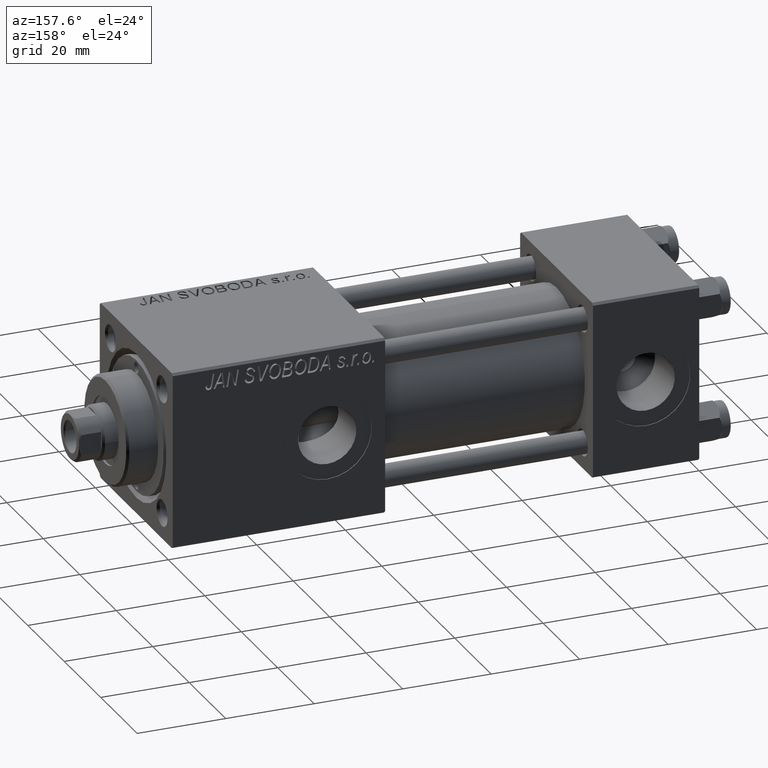
[diagram: clean part render]
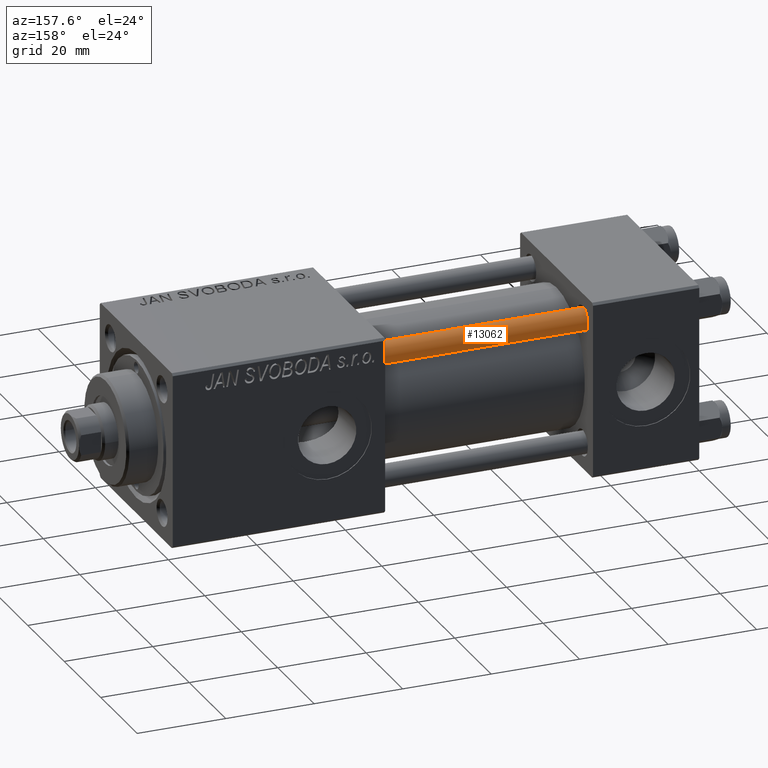
[diagram: same view with one face highlighted and labeled with its STEP entity id]
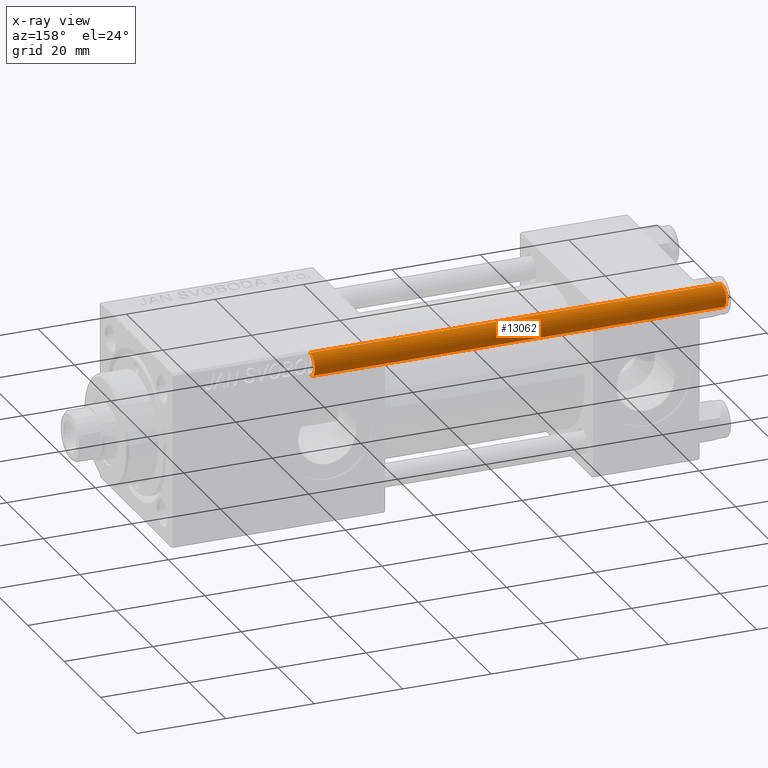
[diagram: x-ray of the same camera — body ghosted, the highlighted face saturated]
A machine part, auxiliary view. The second image highlights one B-rep face of the part: STEP entity #13062.
The next image is the same camera in x-ray: the body ghosted, the highlighted face saturated — about 0% of this face is hidden behind the body in this view.
In plain terms, the highlighted cylindrical surface (edge-blend (fillet) strip) has radius 2.5 mm, axis along (-1, 0, 0).
Its self-contained STEP definition (entity closure, byte-faithful):
#895 = LINE ( 'NONE', #19992, #18024 ) ;
#1202 = ORIENTED_EDGE ( 'NONE', *, *, #28538, .T. ) ;
#2169 = EDGE_CURVE ( 'NONE', #17967, #31237, #32890, .T. ) ;
#4234 = DIRECTION ( 'NONE',  ( -0.000000000000000000, -0.000000000000000000, -1.000000000000000000 ) ) ;
#4851 = DIRECTION ( 'NONE',  ( 1.000000000000000000, 0.000000000000000000, 0.000000000000000000 ) ) ;
#7232 = CARTESIAN_POINT ( 'NONE',  ( 0.000000000000000000, 0.000000000000000000, 94.00000000000000000 ) ) ;
#7521 = ORIENTED_EDGE ( 'NONE', *, *, #23137, .F. ) ;
#7570 = VECTOR ( 'NONE', #9035, 1000.000000000000000 ) ;
#8699 = DIRECTION ( 'NONE',  ( 1.000000000000000000, 0.000000000000000000, 0.000000000000000000 ) ) ;
#9035 = DIRECTION ( 'NONE',  ( -0.000000000000000000, -0.000000000000000000, -1.000000000000000000 ) ) ;
#9324 = ORIENTED_EDGE ( 'NONE', *, *, #24865, .T. ) ;
#12285 = ORIENTED_EDGE ( 'NONE', *, *, #2169, .T. ) ;
#13062 = ADVANCED_FACE ( 'NONE', ( #15116 ), #42076, .T. ) ;
#15116 = FACE_OUTER_BOUND ( 'NONE', #24422, .T. ) ;
#17967 = VERTEX_POINT ( 'NONE', #49715 ) ;
#18024 = VECTOR ( 'NONE', #4234, 1000.000000000000000 ) ;
#19992 = CARTESIAN_POINT ( 'NONE',  ( 2.500000000000000000, 3.061616997868383141E-16, 94.00000000000000000 ) ) ;
#22764 = DIRECTION ( 'NONE',  ( -0.000000000000000000, -0.000000000000000000, -1.000000000000000000 ) ) ;
#23137 = EDGE_CURVE ( 'NONE', #17967, #23591, #32195, .T. ) ;
#23591 = VERTEX_POINT ( 'NONE', #32136 ) ;
#24422 = EDGE_LOOP ( 'NONE', ( #12285, #1202, #9324, #7521 ) ) ;
#24865 = EDGE_CURVE ( 'NONE', #46390, #23591, #26146, .T. ) ;
#25436 = CARTESIAN_POINT ( 'NONE',  ( 2.500000000000000000, 3.061616997868383141E-16, 93.50000000000001421 ) ) ;
#26146 = CIRCLE ( 'NONE', #26949, 2.500000000000000000 ) ;
#26949 = AXIS2_PLACEMENT_3D ( 'NONE', #47072, #32050, #4851 ) ;
#27223 = AXIS2_PLACEMENT_3D ( 'NONE', #43542, #30853, #8699 ) ;
#28394 = AXIS2_PLACEMENT_3D ( 'NONE', #7232, #22764, #41830 ) ;
#28538 = EDGE_CURVE ( 'NONE', #31237, #46390, #895, .T. ) ;
#30853 = DIRECTION ( 'NONE',  ( 0.000000000000000000, 0.000000000000000000, -1.000000000000000000 ) ) ;
#31237 = VERTEX_POINT ( 'NONE', #25436 ) ;
#32050 = DIRECTION ( 'NONE',  ( -0.000000000000000000, -0.000000000000000000, 1.000000000000000000 ) ) ;
#32136 = CARTESIAN_POINT ( 'NONE',  ( -2.500000000000000000, 0.000000000000000000, 0.5000000000000004441 ) ) ;
#32195 = LINE ( 'NONE', #43878, #7570 ) ;
#32890 = CIRCLE ( 'NONE', #27223, 2.500000000000000000 ) ;
#41701 = CARTESIAN_POINT ( 'NONE',  ( 2.500000000000000000, 3.061616997868383141E-16, 0.5000000000000004441 ) ) ;
#41830 = DIRECTION ( 'NONE',  ( -1.000000000000000000, 0.000000000000000000, 0.000000000000000000 ) ) ;
#42076 = CYLINDRICAL_SURFACE ( 'NONE', #28394, 2.500000000000000000 ) ;
#43542 = CARTESIAN_POINT ( 'NONE',  ( 0.000000000000000000, 0.000000000000000000, 93.50000000000001421 ) ) ;
#43878 = CARTESIAN_POINT ( 'NONE',  ( -2.500000000000000000, 0.000000000000000000, 94.00000000000000000 ) ) ;
#46390 = VERTEX_POINT ( 'NONE', #41701 ) ;
#47072 = CARTESIAN_POINT ( 'NONE',  ( 0.000000000000000000, 0.000000000000000000, 0.5000000000000004441 ) ) ;
#49715 = CARTESIAN_POINT ( 'NONE',  ( -2.500000000000000000, 0.000000000000000000, 93.50000000000001421 ) ) ;